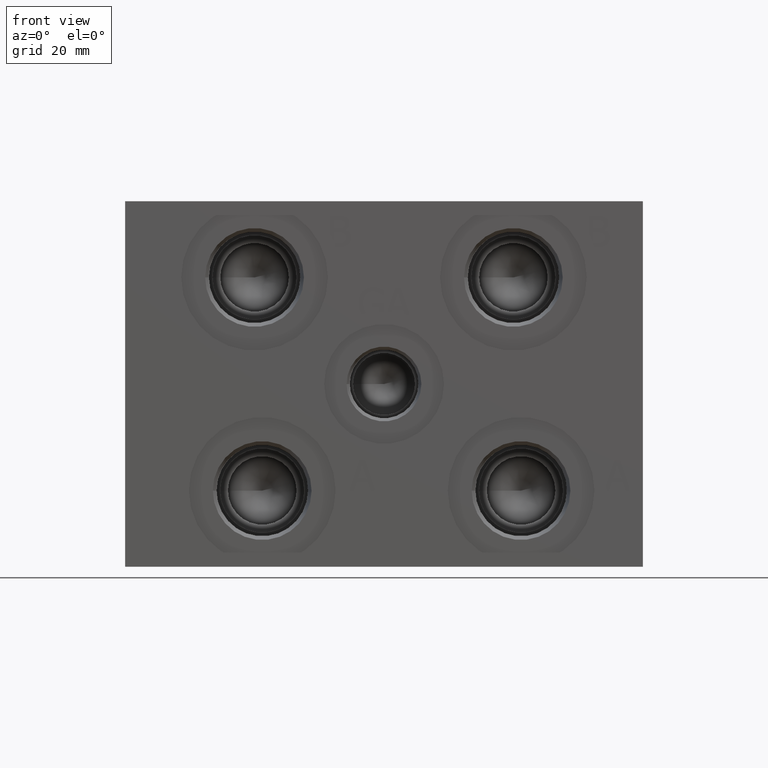
[diagram: clean part render]
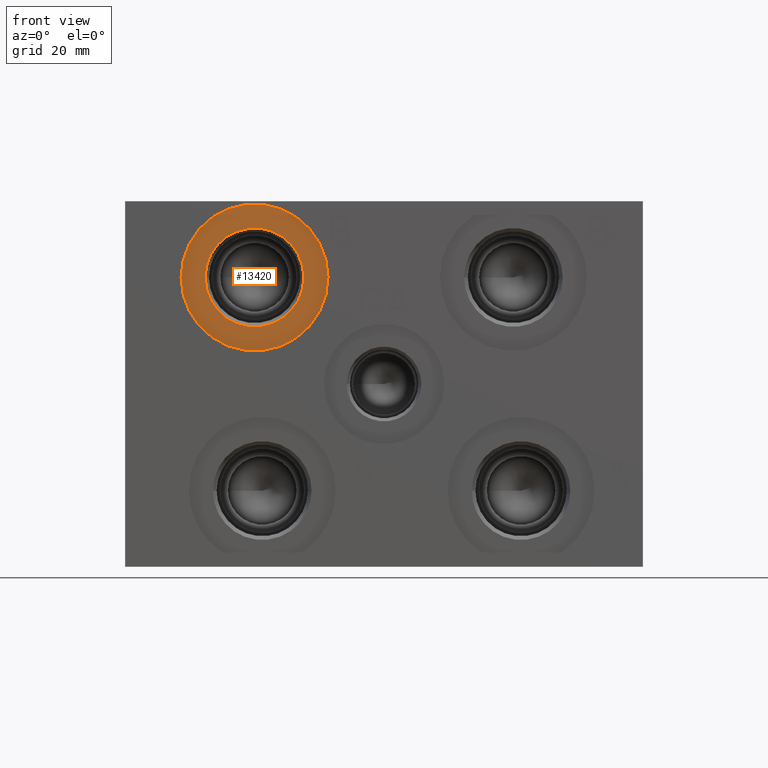
[diagram: same view with one face highlighted and labeled with its STEP entity id]
A machine part, front view. The second image highlights one B-rep face of the part: STEP entity #13420.
In plain terms, the highlighted planar face has unit normal (0, 1, 0).
Its self-contained STEP definition (entity closure, byte-faithful):
#393=CIRCLE('',#14171,15.3162);
#394=CIRCLE('',#14172,15.3162);
#395=CIRCLE('',#14174,10.2997);
#396=CIRCLE('',#14175,10.2997);
#571=FACE_BOUND('',#2564,.T.);
#1786=FACE_OUTER_BOUND('',#2563,.T.);
#2563=EDGE_LOOP('',(#11549,#11550));
#2564=EDGE_LOOP('',(#11551,#11552));
#6207=VERTEX_POINT('',#23156);
#6208=VERTEX_POINT('',#23158);
#6209=VERTEX_POINT('',#23162);
#6210=VERTEX_POINT('',#23163);
#8035=EDGE_CURVE('',#6207,#6208,#393,.T.);
#8036=EDGE_CURVE('',#6208,#6207,#394,.T.);
#8037=EDGE_CURVE('',#6209,#6210,#395,.T.);
#8038=EDGE_CURVE('',#6210,#6209,#396,.T.);
#11549=ORIENTED_EDGE('',*,*,#8036,.F.);
#11550=ORIENTED_EDGE('',*,*,#8035,.F.);
#11551=ORIENTED_EDGE('',*,*,#8037,.T.);
#11552=ORIENTED_EDGE('',*,*,#8038,.T.);
#12285=PLANE('',#14173);
#13420=ADVANCED_FACE('',(#1786,#571),#12285,.F.);
#14171=AXIS2_PLACEMENT_3D('',#23159,#16792,#16793);
#14172=AXIS2_PLACEMENT_3D('',#23160,#16794,#16795);
#14173=AXIS2_PLACEMENT_3D('',#23161,#16796,#16797);
#14174=AXIS2_PLACEMENT_3D('',#23164,#16798,#16799);
#14175=AXIS2_PLACEMENT_3D('',#23165,#16800,#16801);
#16792=DIRECTION('center_axis',(0.,1.,0.));
#16793=DIRECTION('ref_axis',(1.,0.,0.));
#16794=DIRECTION('center_axis',(0.,1.,0.));
#16795=DIRECTION('ref_axis',(1.,0.,0.));
#16796=DIRECTION('center_axis',(0.,1.,0.));
#16797=DIRECTION('ref_axis',(0.,0.,1.));
#16798=DIRECTION('center_axis',(0.,1.,0.));
#16799=DIRECTION('ref_axis',(1.,0.,0.));
#16800=DIRECTION('center_axis',(0.,1.,0.));
#16801=DIRECTION('ref_axis',(1.,0.,0.));
#23156=CARTESIAN_POINT('',(11.6586,0.7874,60.325));
#23158=CARTESIAN_POINT('',(42.291,0.7874,60.325));
#23159=CARTESIAN_POINT('Origin',(26.9748,0.7874,60.325));
#23160=CARTESIAN_POINT('Origin',(26.9748,0.7874,60.325));
#23161=CARTESIAN_POINT('Origin',(37.2745,0.7874,60.325));
#23162=CARTESIAN_POINT('',(37.2745,0.7874,60.325));
#23163=CARTESIAN_POINT('',(16.6751,0.787399999999999,60.325));
#23164=CARTESIAN_POINT('Origin',(26.9748,0.7874,60.325));
#23165=CARTESIAN_POINT('Origin',(26.9748,0.7874,60.325));